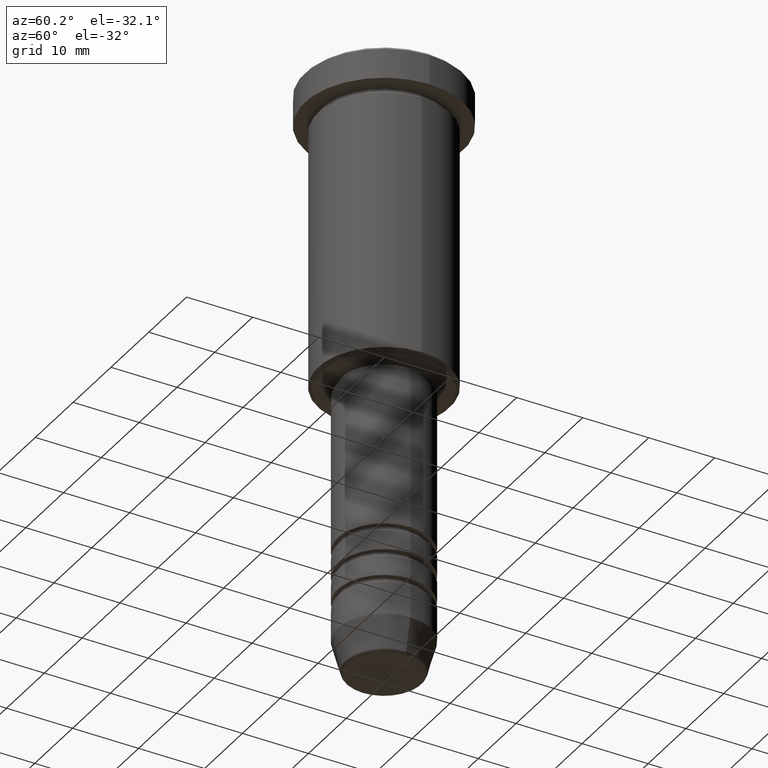
[diagram: clean part render]
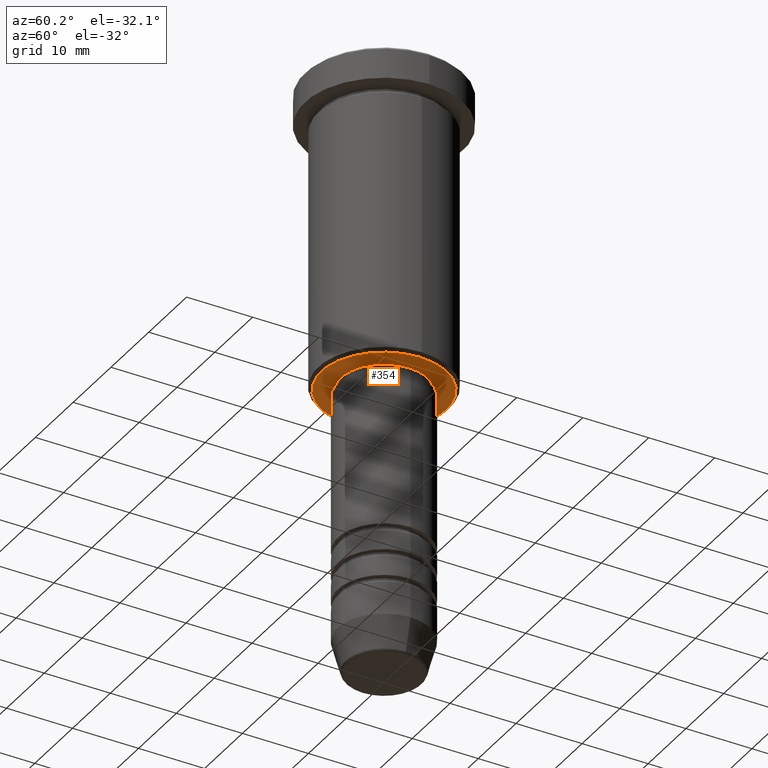
[diagram: same view with one face highlighted and labeled with its STEP entity id]
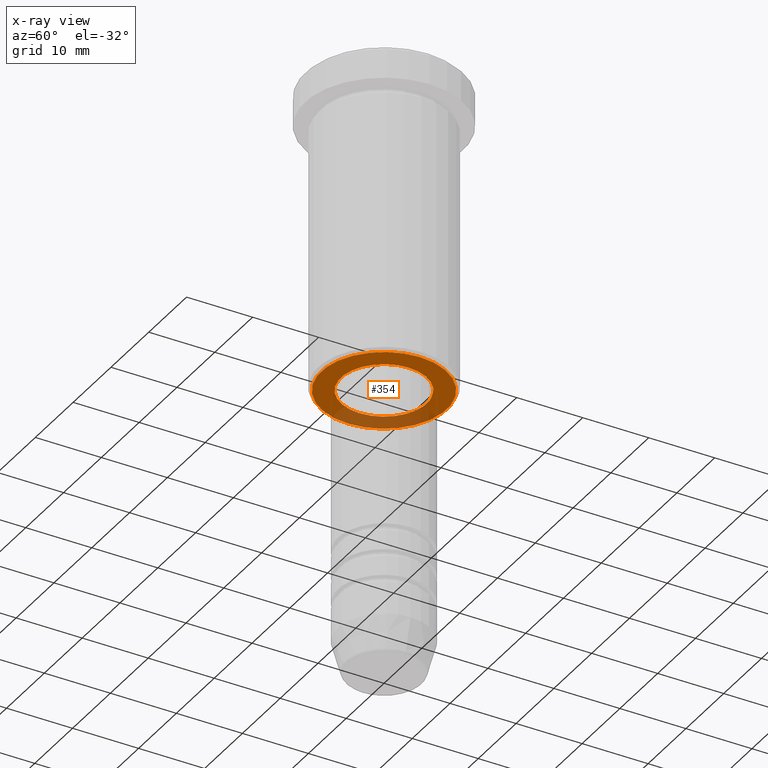
[diagram: x-ray of the same camera — body ghosted, the highlighted face saturated]
A machine part, auxiliary view. The second image highlights one B-rep face of the part: STEP entity #354.
The next image is the same camera in x-ray: the body ghosted, the highlighted face saturated — about 27% of this face is hidden behind the body in this view.
In plain terms, the highlighted planar face has unit normal (0, 0, -1).
Its self-contained STEP definition (entity closure, byte-faithful):
#55 = DIRECTION ( 'NONE',  ( 0.000000000000000000, 0.000000000000000000, -1.000000000000000000 ) ) ;
#70 = DIRECTION ( 'NONE',  ( -1.000000000000000000, 0.000000000000000000, 0.000000000000000000 ) ) ;
#77 = ORIENTED_EDGE ( 'NONE', *, *, #1115, .T. ) ;
#99 = DIRECTION ( 'NONE',  ( -1.000000000000000000, 0.000000000000000000, 0.000000000000000000 ) ) ;
#104 = CARTESIAN_POINT ( 'NONE',  ( 9.500000000000001776, 0.000000000000000000, -46.00000000000000000 ) ) ;
#120 = EDGE_LOOP ( 'NONE', ( #883, #292 ) ) ;
#128 = DIRECTION ( 'NONE',  ( -0.000000000000000000, -0.000000000000000000, 1.000000000000000000 ) ) ;
#239 = AXIS2_PLACEMENT_3D ( 'NONE', #575, #938, #99 ) ;
#240 = FACE_BOUND ( 'NONE', #740, .T. ) ;
#255 = DIRECTION ( 'NONE',  ( 0.000000000000000000, 0.000000000000000000, -1.000000000000000000 ) ) ;
#289 = CIRCLE ( 'NONE', #687, 6.500000000000000000 ) ;
#292 = ORIENTED_EDGE ( 'NONE', *, *, #557, .T. ) ;
#299 = DIRECTION ( 'NONE',  ( 1.000000000000000000, 0.000000000000000000, 0.000000000000000000 ) ) ;
#309 = CIRCLE ( 'NONE', #1023, 9.500000000000001776 ) ;
#314 = EDGE_CURVE ( 'NONE', #699, #834, #942, .T. ) ;
#320 = PLANE ( 'NONE',  #603 ) ;
#335 = VERTEX_POINT ( 'NONE', #1154 ) ;
#354 = ADVANCED_FACE ( 'NONE', ( #496, #240 ), #320, .T. ) ;
#386 = DIRECTION ( 'NONE',  ( 1.000000000000000000, 0.000000000000000000, 0.000000000000000000 ) ) ;
#425 = CARTESIAN_POINT ( 'NONE',  ( -6.500000000000000000, 7.960204194457795477E-16, -46.00000000000000000 ) ) ;
#496 = FACE_OUTER_BOUND ( 'NONE', #120, .T. ) ;
#557 = EDGE_CURVE ( 'NONE', #834, #699, #309, .T. ) ;
#575 = CARTESIAN_POINT ( 'NONE',  ( 0.000000000000000000, 0.000000000000000000, -46.00000000000000000 ) ) ;
#603 = AXIS2_PLACEMENT_3D ( 'NONE', #1056, #55, #697 ) ;
#662 = CARTESIAN_POINT ( 'NONE',  ( 0.000000000000000000, 0.000000000000000000, -46.00000000000000000 ) ) ;
#687 = AXIS2_PLACEMENT_3D ( 'NONE', #662, #128, #386 ) ;
#692 = CARTESIAN_POINT ( 'NONE',  ( -9.500000000000001776, 1.194030629168669469E-15, -46.00000000000000000 ) ) ;
#697 = DIRECTION ( 'NONE',  ( -1.000000000000000000, 0.000000000000000000, -0.000000000000000000 ) ) ;
#699 = VERTEX_POINT ( 'NONE', #104 ) ;
#717 = CIRCLE ( 'NONE', #908, 6.500000000000000000 ) ;
#740 = EDGE_LOOP ( 'NONE', ( #77, #759 ) ) ;
#755 = DIRECTION ( 'NONE',  ( -0.000000000000000000, -0.000000000000000000, 1.000000000000000000 ) ) ;
#759 = ORIENTED_EDGE ( 'NONE', *, *, #797, .T. ) ;
#797 = EDGE_CURVE ( 'NONE', #838, #335, #717, .T. ) ;
#804 = CARTESIAN_POINT ( 'NONE',  ( 0.000000000000000000, 0.000000000000000000, -46.00000000000000000 ) ) ;
#834 = VERTEX_POINT ( 'NONE', #692 ) ;
#838 = VERTEX_POINT ( 'NONE', #425 ) ;
#883 = ORIENTED_EDGE ( 'NONE', *, *, #314, .T. ) ;
#908 = AXIS2_PLACEMENT_3D ( 'NONE', #1028, #755, #299 ) ;
#938 = DIRECTION ( 'NONE',  ( 0.000000000000000000, 0.000000000000000000, -1.000000000000000000 ) ) ;
#942 = CIRCLE ( 'NONE', #239, 9.500000000000001776 ) ;
#1023 = AXIS2_PLACEMENT_3D ( 'NONE', #804, #255, #70 ) ;
#1028 = CARTESIAN_POINT ( 'NONE',  ( 0.000000000000000000, 0.000000000000000000, -46.00000000000000000 ) ) ;
#1056 = CARTESIAN_POINT ( 'NONE',  ( 0.000000000000000000, 9.999999999999998224, -46.00000000000000000 ) ) ;
#1115 = EDGE_CURVE ( 'NONE', #335, #838, #289, .T. ) ;
#1154 = CARTESIAN_POINT ( 'NONE',  ( 6.500000000000000000, 0.000000000000000000, -46.00000000000000000 ) ) ;